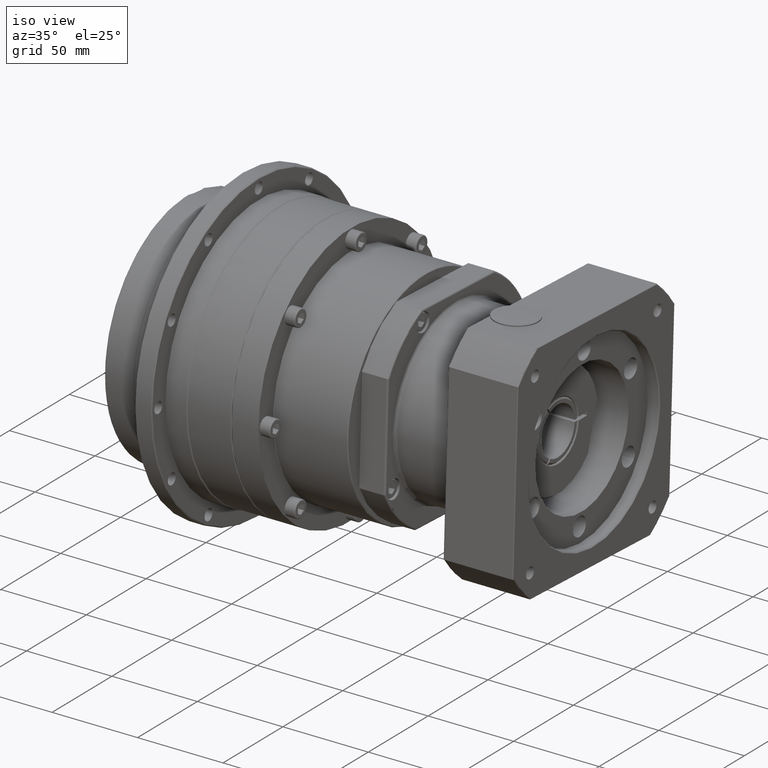
[diagram: clean part render]
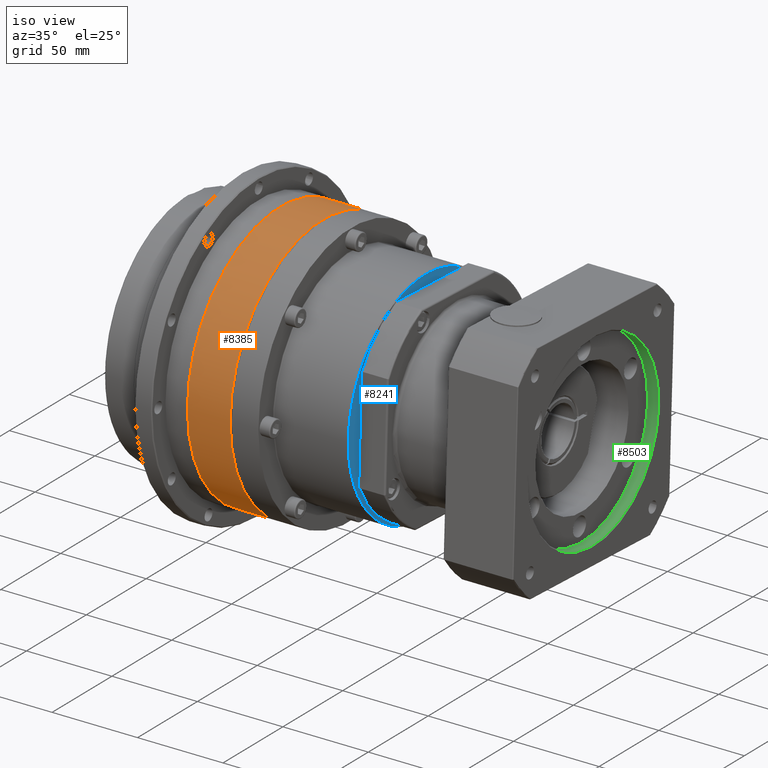
[diagram: same view with three faces highlighted in distinct colors, each labeled with its STEP entity id]
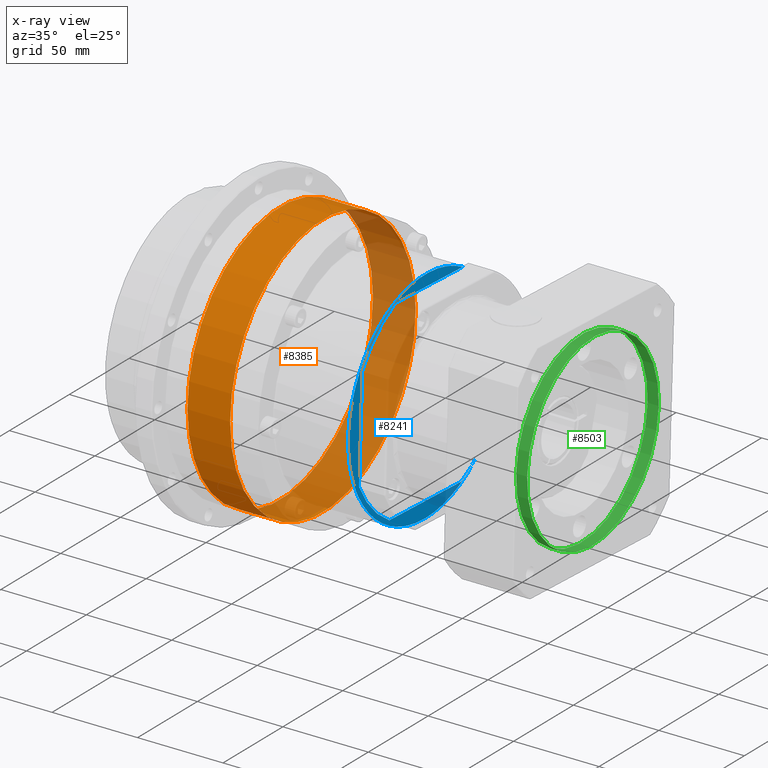
[diagram: x-ray of the same camera — body ghosted, the three highlighted faces saturated]
A machine part, iso view with three faces highlighted in distinct colors.
The next image is the same camera in x-ray (body ghosted, the three faces saturated) — at least one of them is partly hidden behind the body in this view.
Their STEP definitions:

[orange] entity #8385 — the highlighted cylindrical surface (bore or boss wall) has radius 77.5 mm, axis along (1, 0, 0).
#788=FACE_BOUND('',#2019,.T.);
#1276=FACE_OUTER_BOUND('',#2018,.T.);
#2018=EDGE_LOOP('',(#6462));
#2019=EDGE_LOOP('',(#6463));
#2797=CIRCLE('',#9249,77.5);
#2798=CIRCLE('',#9251,77.5);
#4145=VERTEX_POINT('',#13680);
#4146=VERTEX_POINT('',#13683);
#5019=EDGE_CURVE('',#4145,#4145,#2797,.T.);
#5020=EDGE_CURVE('',#4146,#4146,#2798,.T.);
#6462=ORIENTED_EDGE('',*,*,#5020,.T.);
#6463=ORIENTED_EDGE('',*,*,#5019,.F.);
#7595=CYLINDRICAL_SURFACE('',#9250,77.5);
#8385=ADVANCED_FACE('',(#1276,#788),#7595,.T.);
#9249=AXIS2_PLACEMENT_3D('',#13681,#11003,#11004);
#9250=AXIS2_PLACEMENT_3D('',#13682,#11005,#11006);
#9251=AXIS2_PLACEMENT_3D('',#13684,#11007,#11008);
#11003=DIRECTION('center_axis',(1.,1.30207664357906E-15,2.17162238525609E-15));
#11004=DIRECTION('ref_axis',(1.17961196366432E-15,-1.,9.70097096573132E-16));
#11005=DIRECTION('center_axis',(1.,1.30207664357906E-15,2.17162238525609E-15));
#11006=DIRECTION('ref_axis',(-1.17961196366432E-15,1.,-9.70097096573132E-16));
#11007=DIRECTION('center_axis',(1.,1.30207664357906E-15,2.17162238525609E-15));
#11008=DIRECTION('ref_axis',(2.17162238525609E-15,-9.7009709657313E-16,
-1.));
#13680=CARTESIAN_POINT('',(-102.429808100276,57.2699637530926,-7.61221048782447));
#13681=CARTESIAN_POINT('Origin',(-102.429808100276,-20.2300362469074,-7.61221048782441));
#13682=CARTESIAN_POINT('Origin',(-114.679808100276,-20.2300362469075,-7.61221048782444));
#13683=CARTESIAN_POINT('',(-127.429808100276,57.2699637530925,-7.61221048782454));
#13684=CARTESIAN_POINT('Origin',(-127.429808100276,-20.2300362469075,-7.61221048782446));

[blue] entity #8241 — the highlighted planar face has unit normal (1, -0, 0).
#331=PLANE('',#8996);
#1132=FACE_OUTER_BOUND('',#1784,.T.);
#1784=EDGE_LOOP('',(#5982,#5983,#5984,#5985,#5986,#5987,#5988,#5989,#5990));
#2688=CIRCLE('',#8997,64.);
#2689=CIRCLE('',#8998,64.);
#2690=CIRCLE('',#8999,54.5);
#2691=CIRCLE('',#9000,64.);
#2692=CIRCLE('',#9001,64.5);
#3123=LINE('',#12982,#3489);
#3124=LINE('',#12986,#3490);
#3125=LINE('',#12990,#3491);
#3126=LINE('',#12994,#3492);
#3489=VECTOR('',#10399,60.1248700622297);
#3490=VECTOR('',#10402,25.0197261404123);
#3491=VECTOR('',#10405,27.4308152376735);
#3492=VECTOR('',#10408,56.742462156154);
#3941=VERTEX_POINT('',#12978);
#3942=VERTEX_POINT('',#12979);
#3943=VERTEX_POINT('',#12981);
#3944=VERTEX_POINT('',#12983);
#3945=VERTEX_POINT('',#12985);
#3946=VERTEX_POINT('',#12987);
#3947=VERTEX_POINT('',#12989);
#3948=VERTEX_POINT('',#12991);
#3949=VERTEX_POINT('',#12993);
#4760=EDGE_CURVE('',#3941,#3942,#2688,.T.);
#4761=EDGE_CURVE('',#3943,#3941,#3123,.T.);
#4762=EDGE_CURVE('',#3944,#3943,#2689,.T.);
#4763=EDGE_CURVE('',#3945,#3944,#3124,.T.);
#4764=EDGE_CURVE('',#3945,#3946,#2690,.T.);
#4765=EDGE_CURVE('',#3947,#3946,#3125,.T.);
#4766=EDGE_CURVE('',#3948,#3947,#2691,.T.);
#4767=EDGE_CURVE('',#3949,#3948,#3126,.T.);
#4768=EDGE_CURVE('',#3942,#3949,#2692,.T.);
#5982=ORIENTED_EDGE('',*,*,#4760,.F.);
#5983=ORIENTED_EDGE('',*,*,#4761,.F.);
#5984=ORIENTED_EDGE('',*,*,#4762,.F.);
#5985=ORIENTED_EDGE('',*,*,#4763,.F.);
#5986=ORIENTED_EDGE('',*,*,#4764,.T.);
#5987=ORIENTED_EDGE('',*,*,#4765,.F.);
#5988=ORIENTED_EDGE('',*,*,#4766,.F.);
#5989=ORIENTED_EDGE('',*,*,#4767,.F.);
#5990=ORIENTED_EDGE('',*,*,#4768,.F.);
#8241=ADVANCED_FACE('',(#1132),#331,.T.);
#8996=AXIS2_PLACEMENT_3D('',#12977,#10395,#10396);
#8997=AXIS2_PLACEMENT_3D('',#12980,#10397,#10398);
#8998=AXIS2_PLACEMENT_3D('',#12984,#10400,#10401);
#8999=AXIS2_PLACEMENT_3D('',#12988,#10403,#10404);
#9000=AXIS2_PLACEMENT_3D('',#12992,#10406,#10407);
#9001=AXIS2_PLACEMENT_3D('',#12995,#10409,#10410);
#10395=DIRECTION('center_axis',(1.,-1.69106409014785E-16,2.57789637496635E-15));
#10396=DIRECTION('ref_axis',(2.8421709430404E-15,-1.06581410364015E-15,
-1.));
#10397=DIRECTION('center_axis',(1.,-7.10607305259875E-17,1.76621647387803E-15));
#10398=DIRECTION('ref_axis',(1.34824964517663E-15,0.67684793185313,-0.736122868240174));
#10399=DIRECTION('',(1.45026968951724E-16,0.999121234364557,-0.0419137094736806));
#10400=DIRECTION('center_axis',(1.,-7.10607305259875E-17,1.76621647387803E-15));
#10401=DIRECTION('ref_axis',(1.14315053877524E-15,-0.736122868240175,-0.676847931853129));
#10402=DIRECTION('',(1.76168596472177E-15,-0.0419137094736807,-0.999121234364557));
#10403=DIRECTION('center_axis',(-1.,1.69106409014785E-16,-2.57789637496635E-15));
#10404=DIRECTION('ref_axis',(-2.57789637496635E-15,9.99200722162645E-16,
1.));
#10405=DIRECTION('',(1.76168596472177E-15,-0.0419137094736807,-0.999121234364557));
#10406=DIRECTION('center_axis',(1.,-7.10607305259875E-17,1.76621647387803E-15));
#10407=DIRECTION('ref_axis',(-1.34824964517663E-15,-0.676847931853129,0.736122868240175));
#10408=DIRECTION('',(-1.45026968951724E-16,-0.999121234364557,0.0419137094736808));
#10409=DIRECTION('center_axis',(-1.,1.69106409014785E-16,-2.57789637496635E-15));
#10410=DIRECTION('ref_axis',(-1.69106409014788E-16,-1.,9.99200722162645E-16));
#12977=CARTESIAN_POINT('Origin',(-42.4298081002762,-20.2300362469072,-7.61221048782427));
#12978=CARTESIAN_POINT('',(-42.4298081002761,9.62175765446553,-64.2075994389789));
#12979=CARTESIAN_POINT('',(-42.4298081002761,21.1266873572304,-57.1083862262686));
#12980=CARTESIAN_POINT('Origin',(-42.4298081002762,-18.0461349565633,-6.49722152941593));
#12981=CARTESIAN_POINT('',(-42.4298081002761,-50.450276738118,-61.6875431030478));
#12982=CARTESIAN_POINT('',(-42.4298081002761,8.31047594615476,-64.1525904183817));
#12983=CARTESIAN_POINT('',(-42.4298081002762,-75.7565128661263,-34.1651141404447));
#12984=CARTESIAN_POINT('Origin',(-42.4298081002762,-18.0461349565633,-6.49722152941593));
#12985=CARTESIAN_POINT('',(-42.4298081002762,-74.707843333566,-9.16737447557285));
#12986=CARTESIAN_POINT('',(-42.4298081002762,-75.7015038455291,-32.853832432134));
#12987=CARTESIAN_POINT('',(-42.4298081002763,-74.3861837506933,-1.49978972775169));
#12988=CARTESIAN_POINT('Origin',(-42.4298081002762,-20.2300362469072,-7.61221048782427));
#12989=CARTESIAN_POINT('',(-42.4298081002763,-73.2364565301952,25.9069202521388));
#12990=CARTESIAN_POINT('',(-42.4298081002762,-75.7015038455291,-32.853832432134));
#12991=CARTESIAN_POINT('',(-42.4298081002763,-45.714027567592,51.2131563801471));
#12992=CARTESIAN_POINT('Origin',(-42.4298081002762,-18.0461349565633,-6.49722152941593));
#12993=CARTESIAN_POINT('',(-42.4298081002764,10.9785712627487,48.8348693065127));
#12994=CARTESIAN_POINT('',(-42.4298081002763,-44.4027458592813,51.1581473595499));
#12995=CARTESIAN_POINT('Origin',(-42.4298081002762,-20.2300362469072,-7.61221048782427));

[green] entity #8503 — the highlighted cylindrical surface (bore or boss wall) has radius 55 mm, axis along (-1, -0, -0).
#859=FACE_BOUND('',#2208,.T.);
#1394=FACE_OUTER_BOUND('',#2207,.T.);
#2207=EDGE_LOOP('',(#6948));
#2208=EDGE_LOOP('',(#6949));
#2866=CIRCLE('',#9436,55.);
#2867=CIRCLE('',#9438,55.);
#4312=VERTEX_POINT('',#14496);
#4313=VERTEX_POINT('',#14499);
#5258=EDGE_CURVE('',#4312,#4312,#2866,.T.);
#5259=EDGE_CURVE('',#4313,#4313,#2867,.T.);
#6948=ORIENTED_EDGE('',*,*,#5259,.T.);
#6949=ORIENTED_EDGE('',*,*,#5258,.F.);
#7618=CYLINDRICAL_SURFACE('',#9437,55.);
#8503=ADVANCED_FACE('',(#1394,#859),#7618,.F.);
#9436=AXIS2_PLACEMENT_3D('',#14497,#11489,#11490);
#9437=AXIS2_PLACEMENT_3D('',#14498,#11491,#11492);
#9438=AXIS2_PLACEMENT_3D('',#14500,#11493,#11494);
#11489=DIRECTION('center_axis',(-1.,-1.15011921548548E-15,-2.13743306329917E-15));
#11490=DIRECTION('ref_axis',(-1.05952078180769E-15,0.999121234364557,-0.0419137094736798));
#11491=DIRECTION('center_axis',(-1.,-1.15011921548548E-15,-2.13743306329917E-15));
#11492=DIRECTION('ref_axis',(1.05952078180769E-15,-0.999121234364557,0.0419137094736798));
#11493=DIRECTION('center_axis',(-1.,-1.15011921548548E-15,-2.13743306329917E-15));
#11494=DIRECTION('ref_axis',(2.18376052323304E-15,-0.0419137094736798,-0.999121234364557));
#14496=CARTESIAN_POINT('',(54.0701918997238,-72.9978028466139,-4.19196750836337));
#14497=CARTESIAN_POINT('Origin',(54.0701918997237,-18.0461349565633,-6.49722152941577));
#14498=CARTESIAN_POINT('Origin',(51.0701918997237,-18.0461349565633,-6.49722152941577));
#14499=CARTESIAN_POINT('',(47.5701918997238,-72.9978028466139,-4.1919675083634));
#14500=CARTESIAN_POINT('Origin',(47.5701918997237,-18.0461349565633,-6.49722152941578));